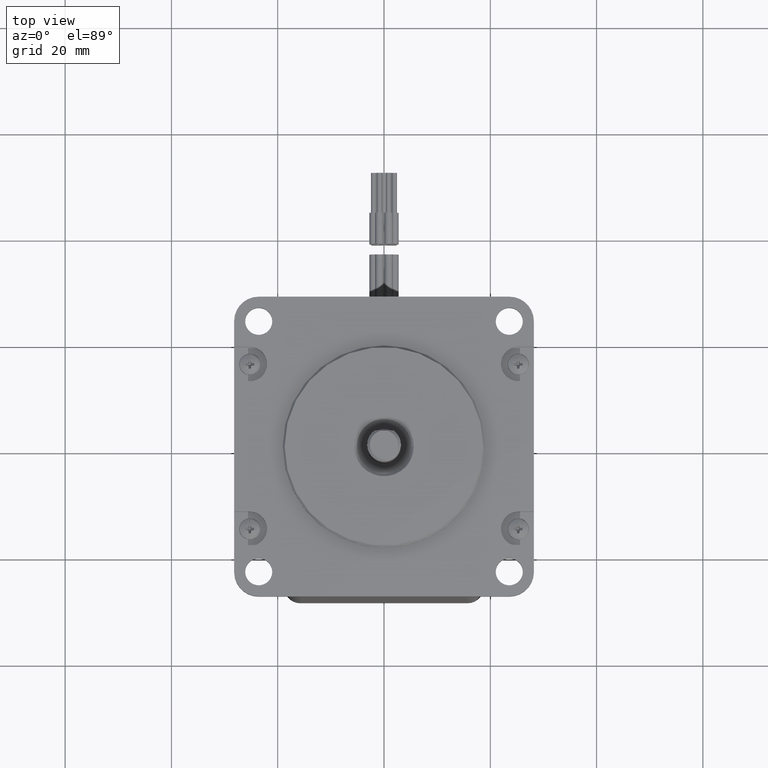
[diagram: clean part render]
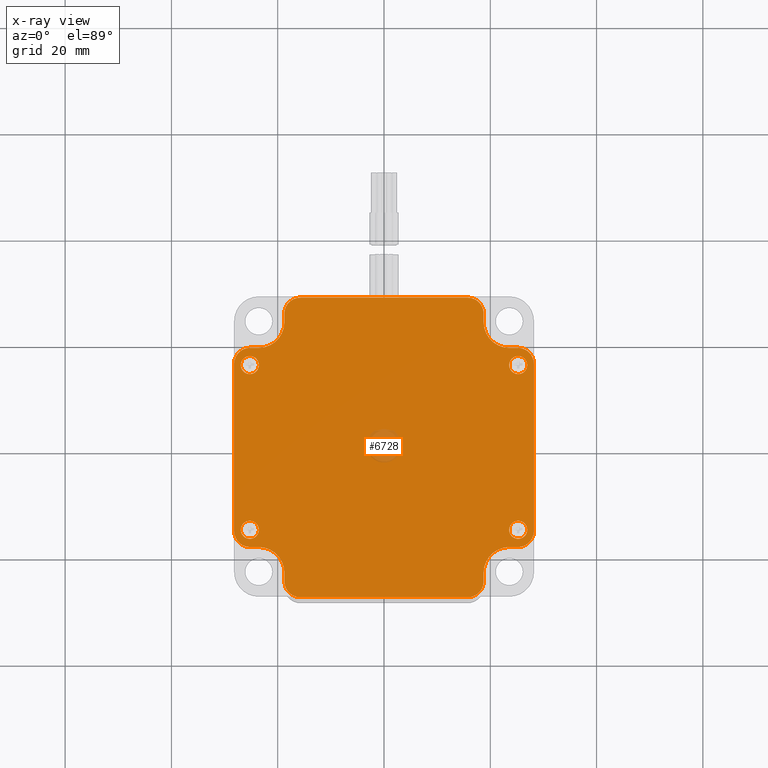
[diagram: x-ray — body ghosted, one internal face saturated and labeled with its STEP entity id]
A machine part, top view, then the same camera in x-ray: the body is ghosted and one INTERNAL B-rep face — a face not visible from any outside direction — is saturated and labeled: STEP entity #6728.
In plain terms, the highlighted planar face has unit normal (0, 0, -1).
Its self-contained STEP definition (entity closure, byte-faithful):
#18 = CARTESIAN_POINT ( 'NONE',  ( 28.19999999999999900, 15.75000000000000000, 0.0000000000000000000 ) ) ;
#32 = DIRECTION ( 'NONE',  ( -1.000000000000000000, 0.0000000000000000000, 0.0000000000000000000 ) ) ;
#39 = FACE_BOUND ( 'NONE', #2332, .T. ) ;
#63 = CIRCLE ( 'NONE', #6283, 1.700000000000000200 ) ;
#67 = DIRECTION ( 'NONE',  ( 1.000000000000000000, 0.0000000000000000000, 0.0000000000000000000 ) ) ;
#100 = DIRECTION ( 'NONE',  ( -1.000000000000000000, 0.0000000000000000000, 0.0000000000000000000 ) ) ;
#140 = VECTOR ( 'NONE', #7119, 1000.000000000000000 ) ;
#208 = ORIENTED_EDGE ( 'NONE', *, *, #5163, .F. ) ;
#238 = DIRECTION ( 'NONE',  ( -0.0000000000000000000, 0.0000000000000000000, -1.000000000000000000 ) ) ;
#260 = DIRECTION ( 'NONE',  ( 1.000000000000000000, 0.0000000000000000000, 0.0000000000000000000 ) ) ;
#299 = VERTEX_POINT ( 'NONE', #8098 ) ;
#567 = ORIENTED_EDGE ( 'NONE', *, *, #11230, .F. ) ;
#595 = ORIENTED_EDGE ( 'NONE', *, *, #5321, .F. ) ;
#671 = CIRCLE ( 'NONE', #11406, 1.700000000000000200 ) ;
#679 = CARTESIAN_POINT ( 'NONE',  ( 28.19999999999999900, 15.75000000000000000, 0.0000000000000000000 ) ) ;
#705 = CARTESIAN_POINT ( 'NONE',  ( -23.57000000000000000, 18.75000000000000000, 0.0000000000000000000 ) ) ;
#762 = CIRCLE ( 'NONE', #4128, 2.999999999999999100 ) ;
#826 = VECTOR ( 'NONE', #5698, 1000.000000000000000 ) ;
#879 = CARTESIAN_POINT ( 'NONE',  ( 25.25000000000000000, -15.50000000000000000, -0.0000000000000000000 ) ) ;
#940 = CIRCLE ( 'NONE', #7158, 2.999999999999999100 ) ;
#997 = ORIENTED_EDGE ( 'NONE', *, *, #9920, .T. ) ;
#1023 = DIRECTION ( 'NONE',  ( 0.0000000000000000000, 0.0000000000000000000, -1.000000000000000000 ) ) ;
#1035 = EDGE_LOOP ( 'NONE', ( #7749, #7053 ) ) ;
#1115 = EDGE_CURVE ( 'NONE', #8359, #7946, #7127, .T. ) ;
#1137 = EDGE_CURVE ( 'NONE', #8720, #1953, #6383, .T. ) ;
#1156 = CARTESIAN_POINT ( 'NONE',  ( 18.75000000000000000, 25.19999999999999900, 0.0000000000000000000 ) ) ;
#1240 = AXIS2_PLACEMENT_3D ( 'NONE', #7960, #9748, #9867 ) ;
#1256 = VERTEX_POINT ( 'NONE', #2005 ) ;
#1270 = DIRECTION ( 'NONE',  ( 1.000000000000000000, 0.0000000000000000000, 0.0000000000000000000 ) ) ;
#1277 = DIRECTION ( 'NONE',  ( 1.000000000000000000, 0.0000000000000000000, 0.0000000000000000000 ) ) ;
#1294 = EDGE_CURVE ( 'NONE', #9729, #3387, #940, .T. ) ;
#1380 = CARTESIAN_POINT ( 'NONE',  ( 23.55000000000000100, 15.50000000000000000, 0.0000000000000000000 ) ) ;
#1411 = DIRECTION ( 'NONE',  ( -0.0000000000000000000, 0.0000000000000000000, -1.000000000000000000 ) ) ;
#1417 = CARTESIAN_POINT ( 'NONE',  ( 26.95000000000000300, -15.50000000000000000, -0.0000000000000000000 ) ) ;
#1427 = EDGE_CURVE ( 'NONE', #5873, #8664, #7978, .T. ) ;
#1507 = LINE ( 'NONE', #6359, #2078 ) ;
#1691 = EDGE_CURVE ( 'NONE', #11241, #2822, #7453, .T. ) ;
#1701 = CARTESIAN_POINT ( 'NONE',  ( -18.75000000000000000, -25.19999999999999900, 0.0000000000000000000 ) ) ;
#1805 = DIRECTION ( 'NONE',  ( -1.000000000000000000, 0.0000000000000000000, 0.0000000000000000000 ) ) ;
#1863 = VERTEX_POINT ( 'NONE', #4756 ) ;
#1873 = DIRECTION ( 'NONE',  ( -0.0000000000000000000, 0.0000000000000000000, -1.000000000000000000 ) ) ;
#1885 = PLANE ( 'NONE',  #5683 ) ;
#1928 = EDGE_CURVE ( 'NONE', #11184, #3815, #5228, .T. ) ;
#1938 = CARTESIAN_POINT ( 'NONE',  ( -25.19999999999999900, 18.75000000000000000, 0.0000000000000000000 ) ) ;
#1953 = VERTEX_POINT ( 'NONE', #10735 ) ;
#2004 = CIRCLE ( 'NONE', #8614, 4.820000000000001200 ) ;
#2005 = CARTESIAN_POINT ( 'NONE',  ( -18.75000000000000000, 25.19999999999999900, 0.0000000000000000000 ) ) ;
#2078 = VECTOR ( 'NONE', #5574, 1000.000000000000000 ) ;
#2090 = LINE ( 'NONE', #4704, #11759 ) ;
#2111 = AXIS2_PLACEMENT_3D ( 'NONE', #3791, #4744, #10308 ) ;
#2152 = CARTESIAN_POINT ( 'NONE',  ( -18.75000000000000000, 23.57000000000000000, 0.0000000000000000000 ) ) ;
#2202 = VERTEX_POINT ( 'NONE', #5198 ) ;
#2242 = CIRCLE ( 'NONE', #8174, 4.820000000000001200 ) ;
#2243 = VERTEX_POINT ( 'NONE', #7347 ) ;
#2257 = VERTEX_POINT ( 'NONE', #7383 ) ;
#2297 = EDGE_CURVE ( 'NONE', #2257, #8359, #2242, .T. ) ;
#2332 = EDGE_LOOP ( 'NONE', ( #5677, #6742 ) ) ;
#2338 = EDGE_CURVE ( 'NONE', #10170, #9729, #2090, .T. ) ;
#2343 = EDGE_CURVE ( 'NONE', #2243, #8390, #1507, .T. ) ;
#2379 = EDGE_CURVE ( 'NONE', #7946, #11749, #12029, .T. ) ;
#2520 = AXIS2_PLACEMENT_3D ( 'NONE', #3892, #3775, #100 ) ;
#2611 = VECTOR ( 'NONE', #1277, 1000.000000000000000 ) ;
#2822 = VERTEX_POINT ( 'NONE', #1417 ) ;
#2892 = AXIS2_PLACEMENT_3D ( 'NONE', #4343, #3373, #4189 ) ;
#2914 = VERTEX_POINT ( 'NONE', #3063 ) ;
#2957 = CARTESIAN_POINT ( 'NONE',  ( 23.57000000000024900, -23.56999999999975200, -0.0000000000000000000 ) ) ;
#2973 = VECTOR ( 'NONE', #1805, 1000.000000000000000 ) ;
#3030 = DIRECTION ( 'NONE',  ( -1.000000000000000000, 0.0000000000000000000, 0.0000000000000000000 ) ) ;
#3041 = EDGE_CURVE ( 'NONE', #5435, #5873, #6185, .T. ) ;
#3063 = CARTESIAN_POINT ( 'NONE',  ( -18.75000000000000000, 23.57000000000000000, 0.0000000000000000000 ) ) ;
#3149 = DIRECTION ( 'NONE',  ( 0.0000000000000000000, 0.0000000000000000000, -1.000000000000000000 ) ) ;
#3238 = ORIENTED_EDGE ( 'NONE', *, *, #11138, .F. ) ;
#3257 = ORIENTED_EDGE ( 'NONE', *, *, #1115, .F. ) ;
#3291 = ORIENTED_EDGE ( 'NONE', *, *, #9126, .F. ) ;
#3350 = AXIS2_PLACEMENT_3D ( 'NONE', #11378, #7865, #11712 ) ;
#3373 = DIRECTION ( 'NONE',  ( -0.0000000000000000000, 0.0000000000000000000, -1.000000000000000000 ) ) ;
#3387 = VERTEX_POINT ( 'NONE', #11099 ) ;
#3398 = ORIENTED_EDGE ( 'NONE', *, *, #10015, .F. ) ;
#3400 = ORIENTED_EDGE ( 'NONE', *, *, #1137, .F. ) ;
#3505 = DIRECTION ( 'NONE',  ( 0.0000000000000000000, -0.0000000000000000000, 1.000000000000000000 ) ) ;
#3538 = VERTEX_POINT ( 'NONE', #10476 ) ;
#3576 = FACE_BOUND ( 'NONE', #11143, .T. ) ;
#3775 = DIRECTION ( 'NONE',  ( 0.0000000000000000000, 0.0000000000000000000, -1.000000000000000000 ) ) ;
#3791 = CARTESIAN_POINT ( 'NONE',  ( -25.25000000000000000, 15.50000000000000000, 0.0000000000000000000 ) ) ;
#3815 = VERTEX_POINT ( 'NONE', #705 ) ;
#3832 = CARTESIAN_POINT ( 'NONE',  ( 25.19999999999999900, 15.75000000000000000, 0.0000000000000000000 ) ) ;
#3892 = CARTESIAN_POINT ( 'NONE',  ( -25.19999999999999900, 15.75000000000000000, 0.0000000000000000000 ) ) ;
#3927 = ORIENTED_EDGE ( 'NONE', *, *, #12127, .F. ) ;
#3941 = CARTESIAN_POINT ( 'NONE',  ( -15.75000000000000000, -25.19999999999999900, 0.0000000000000000000 ) ) ;
#4006 = ORIENTED_EDGE ( 'NONE', *, *, #2379, .F. ) ;
#4007 = CARTESIAN_POINT ( 'NONE',  ( 25.25000000000000000, 15.50000000000000000, 0.0000000000000000000 ) ) ;
#4032 = CARTESIAN_POINT ( 'NONE',  ( 25.19999999999999900, 18.75000000000000000, 0.0000000000000000000 ) ) ;
#4128 = AXIS2_PLACEMENT_3D ( 'NONE', #10092, #10049, #6259 ) ;
#4164 = CARTESIAN_POINT ( 'NONE',  ( -25.25000000000000000, 15.50000000000000000, 0.0000000000000000000 ) ) ;
#4167 = DIRECTION ( 'NONE',  ( 1.000000000000000000, 0.0000000000000000000, 0.0000000000000000000 ) ) ;
#4185 = VECTOR ( 'NONE', #7302, 1000.000000000000000 ) ;
#4189 = DIRECTION ( 'NONE',  ( 1.000000000000000000, 0.0000000000000000000, 0.0000000000000000000 ) ) ;
#4302 = CARTESIAN_POINT ( 'NONE',  ( 15.75000000000029800, -28.19999999999999900, -0.0000000000000000000 ) ) ;
#4343 = CARTESIAN_POINT ( 'NONE',  ( 25.25000000000000000, 15.50000000000000000, 0.0000000000000000000 ) ) ;
#4367 = ORIENTED_EDGE ( 'NONE', *, *, #9370, .F. ) ;
#4461 = CARTESIAN_POINT ( 'NONE',  ( 23.57000000000000000, 23.57000000000000000, 0.0000000000000000000 ) ) ;
#4560 = VERTEX_POINT ( 'NONE', #9551 ) ;
#4593 = CIRCLE ( 'NONE', #1240, 4.820000000000001200 ) ;
#4704 = CARTESIAN_POINT ( 'NONE',  ( 15.75000000000029800, -28.19999999999999900, -0.0000000000000000000 ) ) ;
#4719 = EDGE_CURVE ( 'NONE', #6028, #1863, #671, .T. ) ;
#4744 = DIRECTION ( 'NONE',  ( -0.0000000000000000000, 0.0000000000000000000, -1.000000000000000000 ) ) ;
#4749 = VERTEX_POINT ( 'NONE', #8784 ) ;
#4756 = CARTESIAN_POINT ( 'NONE',  ( -26.95000000000000300, 15.50000000000000000, 0.0000000000000000000 ) ) ;
#4764 = ORIENTED_EDGE ( 'NONE', *, *, #2297, .F. ) ;
#4848 = CARTESIAN_POINT ( 'NONE',  ( 25.19999999999999900, -18.74999999999974800, -0.0000000000000000000 ) ) ;
#4900 = CARTESIAN_POINT ( 'NONE',  ( -23.55000000000000100, -15.50000000000000000, 0.0000000000000000000 ) ) ;
#4942 = LINE ( 'NONE', #1701, #5242 ) ;
#4948 = CARTESIAN_POINT ( 'NONE',  ( 23.55000000000000100, -15.50000000000000000, 0.0000000000000000000 ) ) ;
#4967 = DIRECTION ( 'NONE',  ( 0.0000000000000000000, 1.000000000000000000, 0.0000000000000000000 ) ) ;
#4970 = LINE ( 'NONE', #679, #140 ) ;
#4986 = VECTOR ( 'NONE', #4167, 1000.000000000000000 ) ;
#5016 = DIRECTION ( 'NONE',  ( -1.000000000000000000, 0.0000000000000000000, 0.0000000000000000000 ) ) ;
#5027 = DIRECTION ( 'NONE',  ( 1.000000000000000000, 0.0000000000000000000, 0.0000000000000000000 ) ) ;
#5059 = EDGE_CURVE ( 'NONE', #8664, #2257, #7260, .T. ) ;
#5090 = AXIS2_PLACEMENT_3D ( 'NONE', #9273, #9348, #12045 ) ;
#5163 = EDGE_CURVE ( 'NONE', #7049, #5555, #4593, .T. ) ;
#5198 = CARTESIAN_POINT ( 'NONE',  ( -26.95000000000000300, -15.50000000000000000, 0.0000000000000000000 ) ) ;
#5228 = LINE ( 'NONE', #1938, #2611 ) ;
#5242 = VECTOR ( 'NONE', #5385, 1000.000000000000000 ) ;
#5321 = EDGE_CURVE ( 'NONE', #8390, #11184, #10300, .T. ) ;
#5385 = DIRECTION ( 'NONE',  ( 0.0000000000000000000, 1.000000000000000000, 0.0000000000000000000 ) ) ;
#5435 = VERTEX_POINT ( 'NONE', #10262 ) ;
#5455 = LINE ( 'NONE', #9380, #2973 ) ;
#5484 = ORIENTED_EDGE ( 'NONE', *, *, #2338, .F. ) ;
#5493 = AXIS2_PLACEMENT_3D ( 'NONE', #11022, #8680, #6514 ) ;
#5555 = VERTEX_POINT ( 'NONE', #6703 ) ;
#5574 = DIRECTION ( 'NONE',  ( 0.0000000000000000000, 1.000000000000000000, 0.0000000000000000000 ) ) ;
#5677 = ORIENTED_EDGE ( 'NONE', *, *, #8374, .T. ) ;
#5683 = AXIS2_PLACEMENT_3D ( 'NONE', #8388, #11258, #10306 ) ;
#5698 = DIRECTION ( 'NONE',  ( -1.000000000000000000, 0.0000000000000000000, 0.0000000000000000000 ) ) ;
#5873 = VERTEX_POINT ( 'NONE', #6139 ) ;
#5886 = DIRECTION ( 'NONE',  ( -1.000000000000000000, 0.0000000000000000000, 0.0000000000000000000 ) ) ;
#6028 = VERTEX_POINT ( 'NONE', #6336 ) ;
#6049 = CARTESIAN_POINT ( 'NONE',  ( 18.75000000000024900, -23.57000000000000000, -0.0000000000000000000 ) ) ;
#6139 = CARTESIAN_POINT ( 'NONE',  ( 15.75000000000000000, 28.19999999999999900, 0.0000000000000000000 ) ) ;
#6185 = LINE ( 'NONE', #11654, #4986 ) ;
#6191 = EDGE_CURVE ( 'NONE', #2822, #11241, #8389, .T. ) ;
#6259 = DIRECTION ( 'NONE',  ( -1.000000000000000000, 0.0000000000000000000, 0.0000000000000000000 ) ) ;
#6283 = AXIS2_PLACEMENT_3D ( 'NONE', #8341, #1873, #6589 ) ;
#6336 = CARTESIAN_POINT ( 'NONE',  ( -23.55000000000000100, 15.50000000000000000, 0.0000000000000000000 ) ) ;
#6359 = CARTESIAN_POINT ( 'NONE',  ( -28.19999999999999900, -15.75000000000000000, 0.0000000000000000000 ) ) ;
#6383 = CIRCLE ( 'NONE', #9177, 4.820000000000001200 ) ;
#6514 = DIRECTION ( 'NONE',  ( -1.000000000000000000, 0.0000000000000000000, 0.0000000000000000000 ) ) ;
#6515 = VECTOR ( 'NONE', #8727, 1000.000000000000000 ) ;
#6583 = ORIENTED_EDGE ( 'NONE', *, *, #5059, .F. ) ;
#6589 = DIRECTION ( 'NONE',  ( 1.000000000000000000, 0.0000000000000000000, 0.0000000000000000000 ) ) ;
#6624 = CARTESIAN_POINT ( 'NONE',  ( 18.75000000000000000, 25.19999999999999900, 0.0000000000000000000 ) ) ;
#6703 = CARTESIAN_POINT ( 'NONE',  ( -23.57000000000000000, -18.75000000000000000, 0.0000000000000000000 ) ) ;
#6728 = ADVANCED_FACE ( 'NONE', ( #11463, #3576, #11620, #39, #7827 ), #1885, .F. ) ;
#6742 = ORIENTED_EDGE ( 'NONE', *, *, #11910, .T. ) ;
#6827 = EDGE_CURVE ( 'NONE', #3538, #10170, #7087, .T. ) ;
#6890 = CARTESIAN_POINT ( 'NONE',  ( -25.25000000000000000, -15.50000000000000000, 0.0000000000000000000 ) ) ;
#7049 = VERTEX_POINT ( 'NONE', #8342 ) ;
#7053 = ORIENTED_EDGE ( 'NONE', *, *, #1691, .T. ) ;
#7071 = ORIENTED_EDGE ( 'NONE', *, *, #4719, .T. ) ;
#7087 = CIRCLE ( 'NONE', #3350, 2.999999999999999100 ) ;
#7119 = DIRECTION ( 'NONE',  ( 0.0000000000000000000, -1.000000000000000000, -0.0000000000000000000 ) ) ;
#7127 = LINE ( 'NONE', #11952, #4185 ) ;
#7135 = CIRCLE ( 'NONE', #2111, 1.700000000000000200 ) ;
#7158 = AXIS2_PLACEMENT_3D ( 'NONE', #3941, #8584, #5886 ) ;
#7188 = VECTOR ( 'NONE', #8790, 1000.000000000000000 ) ;
#7215 = ORIENTED_EDGE ( 'NONE', *, *, #1294, .F. ) ;
#7260 = LINE ( 'NONE', #1156, #6515 ) ;
#7266 = EDGE_CURVE ( 'NONE', #4749, #2243, #8239, .T. ) ;
#7302 = DIRECTION ( 'NONE',  ( 1.000000000000000000, 0.0000000000000000000, 0.0000000000000000000 ) ) ;
#7314 = AXIS2_PLACEMENT_3D ( 'NONE', #3832, #1023, #32 ) ;
#7347 = CARTESIAN_POINT ( 'NONE',  ( -28.19999999999999900, -15.75000000000000000, 0.0000000000000000000 ) ) ;
#7368 = VERTEX_POINT ( 'NONE', #4900 ) ;
#7383 = CARTESIAN_POINT ( 'NONE',  ( 18.75000000000000000, 23.57000000000000000, 0.0000000000000000000 ) ) ;
#7453 = CIRCLE ( 'NONE', #5090, 1.700000000000000200 ) ;
#7527 = EDGE_CURVE ( 'NONE', #299, #7745, #762, .T. ) ;
#7664 = CIRCLE ( 'NONE', #9582, 2.999999999999999100 ) ;
#7745 = VERTEX_POINT ( 'NONE', #4848 ) ;
#7749 = ORIENTED_EDGE ( 'NONE', *, *, #6191, .T. ) ;
#7827 = FACE_BOUND ( 'NONE', #8107, .T. ) ;
#7865 = DIRECTION ( 'NONE',  ( 0.0000000000000000000, 0.0000000000000000000, -1.000000000000000000 ) ) ;
#7928 = ORIENTED_EDGE ( 'NONE', *, *, #3041, .F. ) ;
#7946 = VERTEX_POINT ( 'NONE', #4032 ) ;
#7960 = CARTESIAN_POINT ( 'NONE',  ( -23.57000000000000000, -23.57000000000000000, 0.0000000000000000000 ) ) ;
#7978 = CIRCLE ( 'NONE', #5493, 2.999999999999999100 ) ;
#8009 = LINE ( 'NONE', #11262, #826 ) ;
#8033 = CARTESIAN_POINT ( 'NONE',  ( -28.19999999999999900, 15.75000000000000000, 0.0000000000000000000 ) ) ;
#8098 = CARTESIAN_POINT ( 'NONE',  ( 28.19999999999999900, -15.74999999999975000, 0.0000000000000000000 ) ) ;
#8107 = EDGE_LOOP ( 'NONE', ( #7071, #997 ) ) ;
#8174 = AXIS2_PLACEMENT_3D ( 'NONE', #4461, #3505, #9256 ) ;
#8239 = CIRCLE ( 'NONE', #11657, 2.999999999999999100 ) ;
#8274 = EDGE_CURVE ( 'NONE', #2202, #7368, #8339, .T. ) ;
#8287 = ORIENTED_EDGE ( 'NONE', *, *, #2343, .F. ) ;
#8330 = DIRECTION ( 'NONE',  ( -0.0000000000000000000, 0.0000000000000000000, -1.000000000000000000 ) ) ;
#8339 = CIRCLE ( 'NONE', #8761, 1.700000000000000200 ) ;
#8341 = CARTESIAN_POINT ( 'NONE',  ( -25.25000000000000000, -15.50000000000000000, 0.0000000000000000000 ) ) ;
#8342 = CARTESIAN_POINT ( 'NONE',  ( -18.75000000000000000, -23.57000000000000000, 0.0000000000000000000 ) ) ;
#8359 = VERTEX_POINT ( 'NONE', #10846 ) ;
#8374 = EDGE_CURVE ( 'NONE', #4560, #11966, #9512, .T. ) ;
#8388 = CARTESIAN_POINT ( 'NONE',  ( -15.75000000000000000, 25.19999999999999900, 0.0000000000000000000 ) ) ;
#8389 = CIRCLE ( 'NONE', #10140, 1.700000000000000200 ) ;
#8390 = VERTEX_POINT ( 'NONE', #8033 ) ;
#8584 = DIRECTION ( 'NONE',  ( 0.0000000000000000000, 0.0000000000000000000, -1.000000000000000000 ) ) ;
#8594 = ORIENTED_EDGE ( 'NONE', *, *, #10348, .T. ) ;
#8614 = AXIS2_PLACEMENT_3D ( 'NONE', #8807, #9615, #5027 ) ;
#8635 = DIRECTION ( 'NONE',  ( 0.0000000000000000000, 0.0000000000000000000, -1.000000000000000000 ) ) ;
#8664 = VERTEX_POINT ( 'NONE', #6624 ) ;
#8680 = DIRECTION ( 'NONE',  ( 0.0000000000000000000, 0.0000000000000000000, -1.000000000000000000 ) ) ;
#8720 = VERTEX_POINT ( 'NONE', #11371 ) ;
#8727 = DIRECTION ( 'NONE',  ( 0.0000000000000000000, -1.000000000000000000, 0.0000000000000000000 ) ) ;
#8761 = AXIS2_PLACEMENT_3D ( 'NONE', #6890, #238, #1270 ) ;
#8762 = ORIENTED_EDGE ( 'NONE', *, *, #7527, .F. ) ;
#8784 = CARTESIAN_POINT ( 'NONE',  ( -25.19999999999999900, -18.75000000000000000, 0.0000000000000000000 ) ) ;
#8786 = LINE ( 'NONE', #6049, #7188 ) ;
#8790 = DIRECTION ( 'NONE',  ( 0.0000000000000000000, -1.000000000000000000, 0.0000000000000000000 ) ) ;
#8807 = CARTESIAN_POINT ( 'NONE',  ( -23.57000000000000000, 23.57000000000000000, 0.0000000000000000000 ) ) ;
#9075 = ORIENTED_EDGE ( 'NONE', *, *, #1928, .F. ) ;
#9126 = EDGE_CURVE ( 'NONE', #3387, #7049, #4942, .T. ) ;
#9128 = ORIENTED_EDGE ( 'NONE', *, *, #1427, .F. ) ;
#9177 = AXIS2_PLACEMENT_3D ( 'NONE', #2957, #9487, #67 ) ;
#9256 = DIRECTION ( 'NONE',  ( 1.000000000000000000, 0.0000000000000000000, 0.0000000000000000000 ) ) ;
#9273 = CARTESIAN_POINT ( 'NONE',  ( 25.25000000000000000, -15.50000000000000000, -0.0000000000000000000 ) ) ;
#9348 = DIRECTION ( 'NONE',  ( -0.0000000000000000000, 0.0000000000000000000, -1.000000000000000000 ) ) ;
#9370 = EDGE_CURVE ( 'NONE', #2914, #1256, #11973, .T. ) ;
#9380 = CARTESIAN_POINT ( 'NONE',  ( 25.19999999999999900, -18.74999999999974800, -0.0000000000000000000 ) ) ;
#9487 = DIRECTION ( 'NONE',  ( 0.0000000000000000000, -0.0000000000000000000, 1.000000000000000000 ) ) ;
#9512 = CIRCLE ( 'NONE', #2892, 1.700000000000000200 ) ;
#9551 = CARTESIAN_POINT ( 'NONE',  ( 26.95000000000000300, 15.50000000000000000, 0.0000000000000000000 ) ) ;
#9582 = AXIS2_PLACEMENT_3D ( 'NONE', #10394, #8635, #3030 ) ;
#9615 = DIRECTION ( 'NONE',  ( 0.0000000000000000000, -0.0000000000000000000, 1.000000000000000000 ) ) ;
#9629 = EDGE_LOOP ( 'NONE', ( #567, #4367, #3398, #9075, #595, #8287, #10643, #10229, #208, #3291, #7215, #5484, #10410, #11264, #3400, #3238, #8762, #3927, #4006, #3257, #4764, #6583, #9128, #7928 ) ) ;
#9729 = VERTEX_POINT ( 'NONE', #12106 ) ;
#9748 = DIRECTION ( 'NONE',  ( 0.0000000000000000000, -0.0000000000000000000, 1.000000000000000000 ) ) ;
#9809 = CIRCLE ( 'NONE', #11638, 1.700000000000000200 ) ;
#9867 = DIRECTION ( 'NONE',  ( 1.000000000000000000, 0.0000000000000000000, 0.0000000000000000000 ) ) ;
#9920 = EDGE_CURVE ( 'NONE', #1863, #6028, #7135, .T. ) ;
#9938 = EDGE_CURVE ( 'NONE', #5555, #4749, #8009, .T. ) ;
#10015 = EDGE_CURVE ( 'NONE', #3815, #2914, #2004, .T. ) ;
#10049 = DIRECTION ( 'NONE',  ( 0.0000000000000000000, 0.0000000000000000000, -1.000000000000000000 ) ) ;
#10092 = CARTESIAN_POINT ( 'NONE',  ( 25.19999999999999900, -15.74999999999975000, -0.0000000000000000000 ) ) ;
#10140 = AXIS2_PLACEMENT_3D ( 'NONE', #879, #8330, #10245 ) ;
#10170 = VERTEX_POINT ( 'NONE', #4302 ) ;
#10229 = ORIENTED_EDGE ( 'NONE', *, *, #9938, .F. ) ;
#10245 = DIRECTION ( 'NONE',  ( 1.000000000000000000, 0.0000000000000000000, 0.0000000000000000000 ) ) ;
#10262 = CARTESIAN_POINT ( 'NONE',  ( -15.75000000000000000, 28.19999999999999900, 0.0000000000000000000 ) ) ;
#10300 = CIRCLE ( 'NONE', #2520, 2.999999999999999100 ) ;
#10306 = DIRECTION ( 'NONE',  ( -1.000000000000000000, 0.0000000000000000000, -0.0000000000000000000 ) ) ;
#10308 = DIRECTION ( 'NONE',  ( 1.000000000000000000, 0.0000000000000000000, 0.0000000000000000000 ) ) ;
#10348 = EDGE_CURVE ( 'NONE', #7368, #2202, #63, .T. ) ;
#10359 = VECTOR ( 'NONE', #4967, 1000.000000000000000 ) ;
#10394 = CARTESIAN_POINT ( 'NONE',  ( -15.75000000000000000, 25.19999999999999900, 0.0000000000000000000 ) ) ;
#10410 = ORIENTED_EDGE ( 'NONE', *, *, #6827, .F. ) ;
#10476 = CARTESIAN_POINT ( 'NONE',  ( 18.75000000000024900, -25.19999999999999900, 0.0000000000000000000 ) ) ;
#10536 = DIRECTION ( 'NONE',  ( -0.0000000000000000000, 0.0000000000000000000, -1.000000000000000000 ) ) ;
#10615 = DIRECTION ( 'NONE',  ( 1.000000000000000000, 0.0000000000000000000, 0.0000000000000000000 ) ) ;
#10643 = ORIENTED_EDGE ( 'NONE', *, *, #7266, .F. ) ;
#10735 = CARTESIAN_POINT ( 'NONE',  ( 18.75000000000024900, -23.57000000000000000, -0.0000000000000000000 ) ) ;
#10846 = CARTESIAN_POINT ( 'NONE',  ( 23.57000000000000000, 18.75000000000000000, 0.0000000000000000000 ) ) ;
#11022 = CARTESIAN_POINT ( 'NONE',  ( 15.75000000000000000, 25.19999999999999900, 0.0000000000000000000 ) ) ;
#11099 = CARTESIAN_POINT ( 'NONE',  ( -18.75000000000000000, -25.19999999999999900, 0.0000000000000000000 ) ) ;
#11138 = EDGE_CURVE ( 'NONE', #7745, #8720, #5455, .T. ) ;
#11143 = EDGE_LOOP ( 'NONE', ( #8594, #11717 ) ) ;
#11184 = VERTEX_POINT ( 'NONE', #11379 ) ;
#11230 = EDGE_CURVE ( 'NONE', #1256, #5435, #7664, .T. ) ;
#11241 = VERTEX_POINT ( 'NONE', #4948 ) ;
#11258 = DIRECTION ( 'NONE',  ( 0.0000000000000000000, 0.0000000000000000000, -1.000000000000000000 ) ) ;
#11262 = CARTESIAN_POINT ( 'NONE',  ( -23.57000000000000000, -18.75000000000000000, 0.0000000000000000000 ) ) ;
#11264 = ORIENTED_EDGE ( 'NONE', *, *, #11999, .F. ) ;
#11371 = CARTESIAN_POINT ( 'NONE',  ( 23.57000000000000000, -18.74999999999974800, 0.0000000000000000000 ) ) ;
#11378 = CARTESIAN_POINT ( 'NONE',  ( 15.75000000000025000, -25.19999999999999900, -0.0000000000000000000 ) ) ;
#11379 = CARTESIAN_POINT ( 'NONE',  ( -25.19999999999999900, 18.75000000000000000, 0.0000000000000000000 ) ) ;
#11406 = AXIS2_PLACEMENT_3D ( 'NONE', #4164, #1411, #10615 ) ;
#11463 = FACE_OUTER_BOUND ( 'NONE', #9629, .T. ) ;
#11489 = CARTESIAN_POINT ( 'NONE',  ( -25.19999999999999900, -15.75000000000000000, 0.0000000000000000000 ) ) ;
#11620 = FACE_BOUND ( 'NONE', #1035, .T. ) ;
#11638 = AXIS2_PLACEMENT_3D ( 'NONE', #4007, #10536, #260 ) ;
#11654 = CARTESIAN_POINT ( 'NONE',  ( -15.75000000000000000, 28.19999999999999900, 0.0000000000000000000 ) ) ;
#11657 = AXIS2_PLACEMENT_3D ( 'NONE', #11489, #3149, #5016 ) ;
#11712 = DIRECTION ( 'NONE',  ( -1.000000000000000000, 0.0000000000000000000, 0.0000000000000000000 ) ) ;
#11717 = ORIENTED_EDGE ( 'NONE', *, *, #8274, .T. ) ;
#11749 = VERTEX_POINT ( 'NONE', #18 ) ;
#11759 = VECTOR ( 'NONE', #12103, 1000.000000000000000 ) ;
#11910 = EDGE_CURVE ( 'NONE', #11966, #4560, #9809, .T. ) ;
#11952 = CARTESIAN_POINT ( 'NONE',  ( 23.57000000000000000, 18.75000000000000000, 0.0000000000000000000 ) ) ;
#11966 = VERTEX_POINT ( 'NONE', #1380 ) ;
#11973 = LINE ( 'NONE', #2152, #10359 ) ;
#11999 = EDGE_CURVE ( 'NONE', #1953, #3538, #8786, .T. ) ;
#12029 = CIRCLE ( 'NONE', #7314, 2.999999999999999100 ) ;
#12045 = DIRECTION ( 'NONE',  ( 1.000000000000000000, 0.0000000000000000000, 0.0000000000000000000 ) ) ;
#12103 = DIRECTION ( 'NONE',  ( -1.000000000000000000, 0.0000000000000000000, 0.0000000000000000000 ) ) ;
#12106 = CARTESIAN_POINT ( 'NONE',  ( -15.75000000000000000, -28.19999999999999900, 0.0000000000000000000 ) ) ;
#12127 = EDGE_CURVE ( 'NONE', #11749, #299, #4970, .T. ) ;